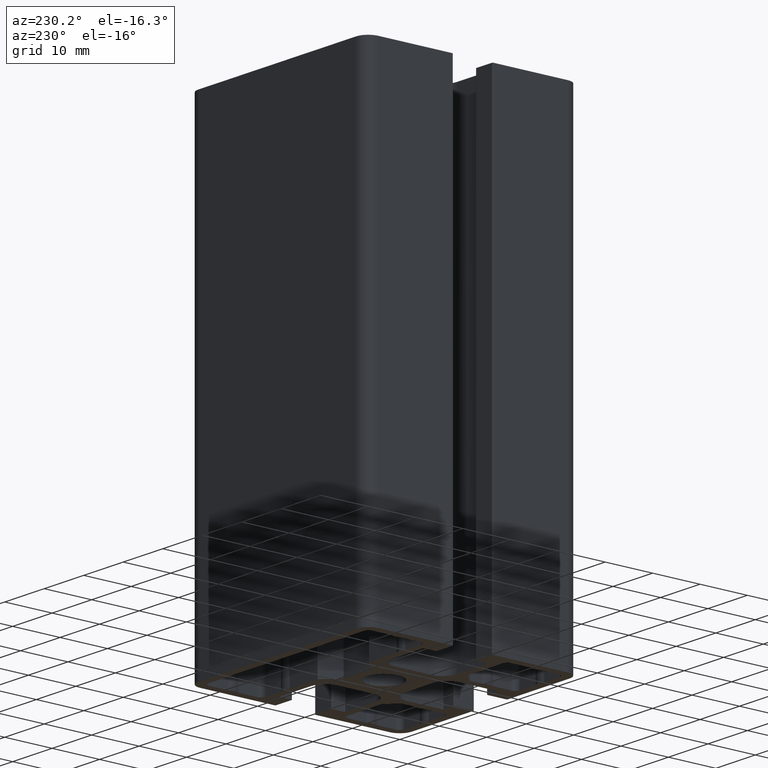
[diagram: clean part render]
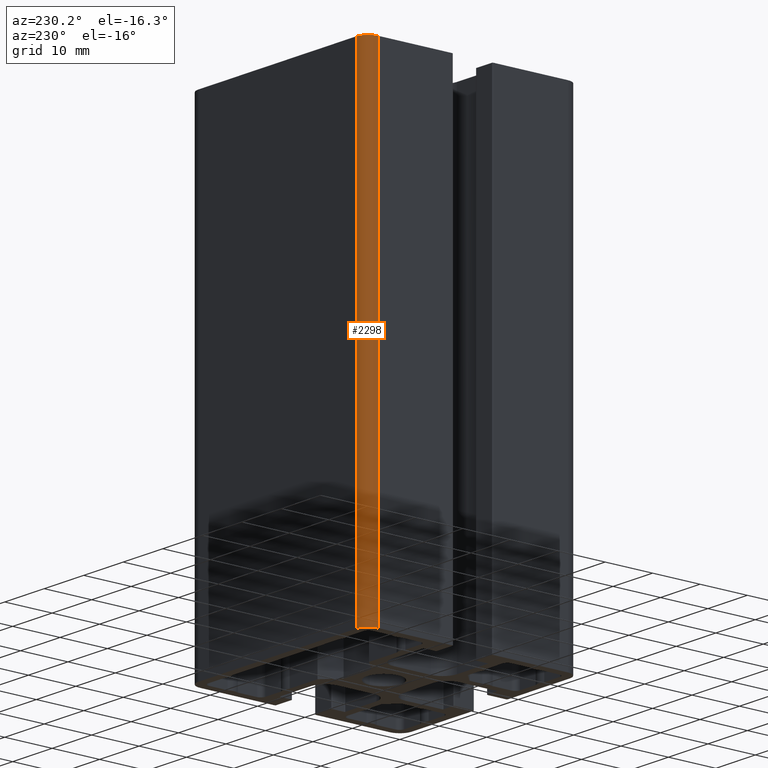
[diagram: same view with one face highlighted and labeled with its STEP entity id]
A machine part, auxiliary view. The second image highlights one B-rep face of the part: STEP entity #2298.
In plain terms, the highlighted cylindrical surface (edge-blend (fillet) strip) has radius 2.5 mm, axis along (0, 0, 1).
Its self-contained STEP definition (entity closure, byte-faithful):
#125=CIRCLE('',#2512,2.5);
#128=CIRCLE('',#2520,2.5);
#181=CYLINDRICAL_SURFACE('',#2519,2.5);
#293=FACE_OUTER_BOUND('',#413,.T.);
#413=EDGE_LOOP('',(#1997,#1998,#1999,#2000));
#647=LINE('',#3865,#879);
#649=LINE('',#3869,#881);
#879=VECTOR('',#3181,100.);
#881=VECTOR('',#3185,100.);
#1105=VERTEX_POINT('',#3850);
#1106=VERTEX_POINT('',#3852);
#1108=VERTEX_POINT('',#3864);
#1109=VERTEX_POINT('',#3868);
#1435=EDGE_CURVE('',#1106,#1105,#125,.T.);
#1441=EDGE_CURVE('',#1108,#1106,#647,.T.);
#1443=EDGE_CURVE('',#1109,#1105,#649,.T.);
#1444=EDGE_CURVE('',#1108,#1109,#128,.T.);
#1997=ORIENTED_EDGE('',*,*,#1435,.T.);
#1998=ORIENTED_EDGE('',*,*,#1443,.F.);
#1999=ORIENTED_EDGE('',*,*,#1444,.F.);
#2000=ORIENTED_EDGE('',*,*,#1441,.T.);
#2298=ADVANCED_FACE('',(#293),#181,.T.);
#2512=AXIS2_PLACEMENT_3D('',#3853,#3164,#3165);
#2519=AXIS2_PLACEMENT_3D('',#3867,#3183,#3184);
#2520=AXIS2_PLACEMENT_3D('',#3870,#3186,#3187);
#3164=DIRECTION('center_axis',(0.,0.,-1.));
#3165=DIRECTION('ref_axis',(-3.55271367880049E-15,1.,0.));
#3181=DIRECTION('',(0.,0.,1.));
#3183=DIRECTION('center_axis',(0.,0.,1.));
#3184=DIRECTION('ref_axis',(-3.55271367880049E-15,1.,0.));
#3185=DIRECTION('',(0.,0.,1.));
#3186=DIRECTION('center_axis',(0.,0.,-1.));
#3187=DIRECTION('ref_axis',(-3.55271367880049E-15,1.,0.));
#3850=CARTESIAN_POINT('',(-20.,22.5,100.));
#3852=CARTESIAN_POINT('',(-22.5,20.,100.));
#3853=CARTESIAN_POINT('Origin',(-20.,20.,100.));
#3864=CARTESIAN_POINT('',(-22.5,20.,0.));
#3865=CARTESIAN_POINT('',(-22.5,20.,0.));
#3867=CARTESIAN_POINT('Origin',(-20.,20.,0.));
#3868=CARTESIAN_POINT('',(-20.,22.5,0.));
#3869=CARTESIAN_POINT('',(-20.,22.5,0.));
#3870=CARTESIAN_POINT('Origin',(-20.,20.,0.));